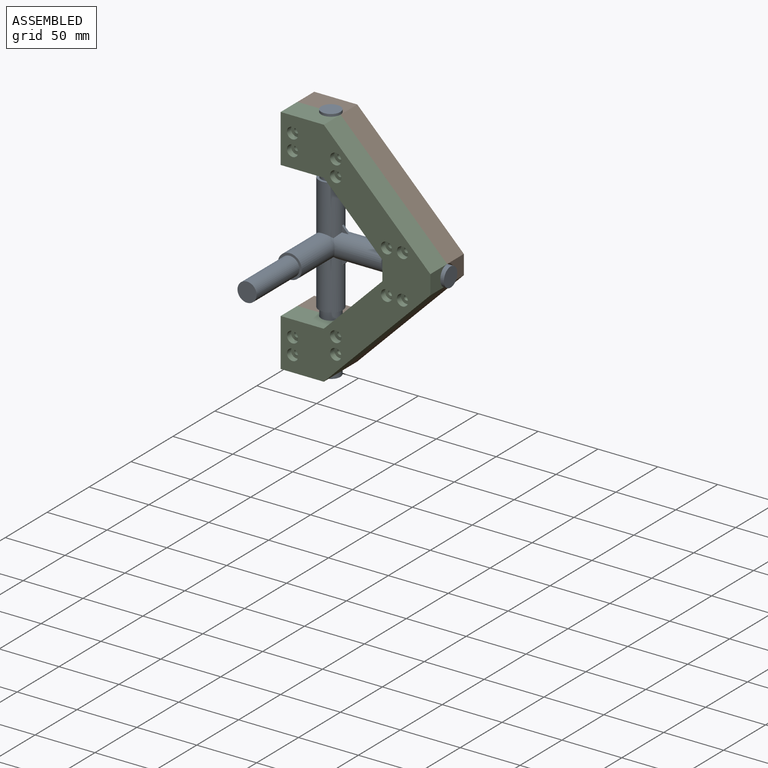
[diagram: assembled view]
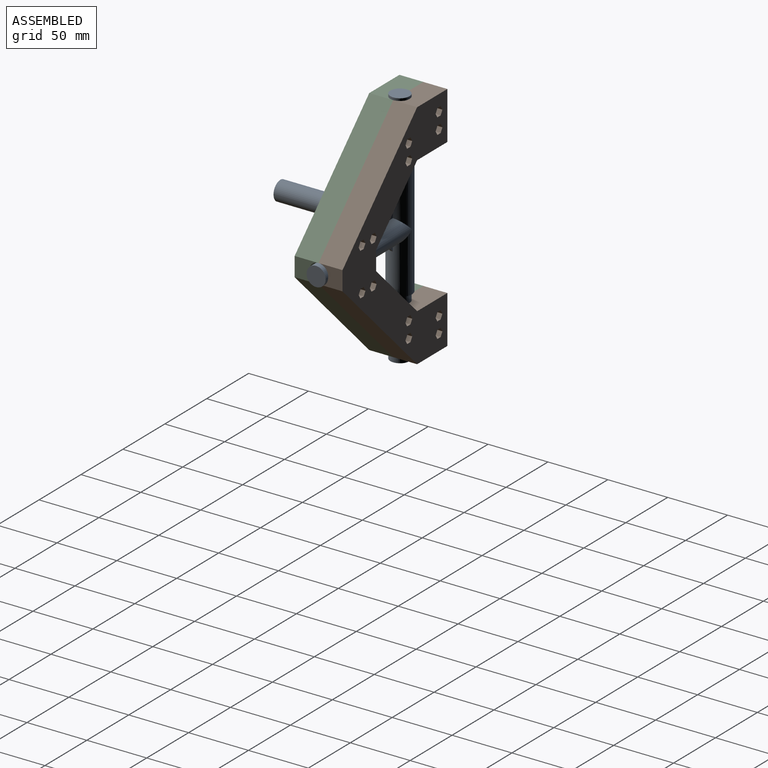
[diagram: assembled view, second angle]
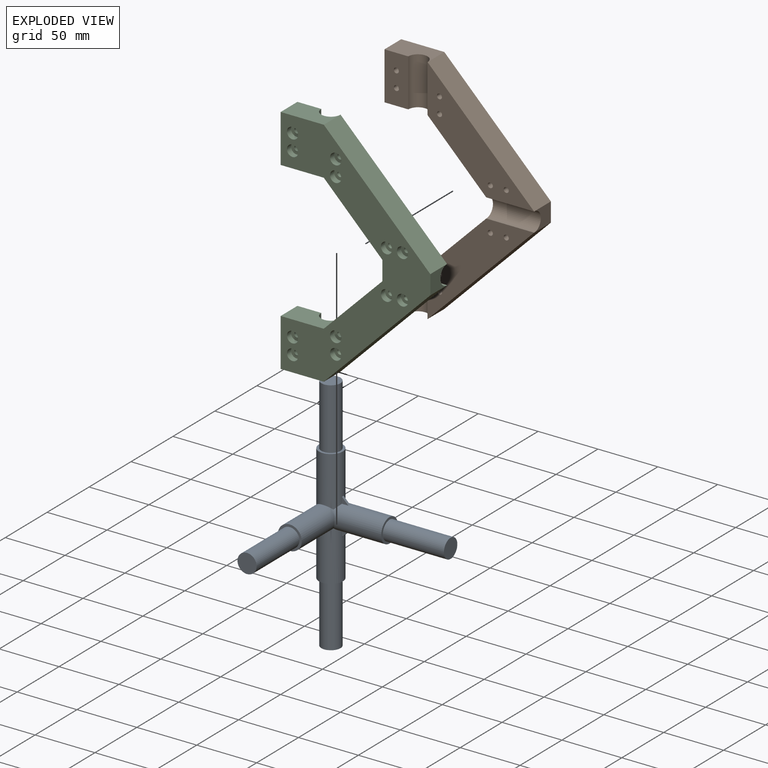
[diagram: exploded view]
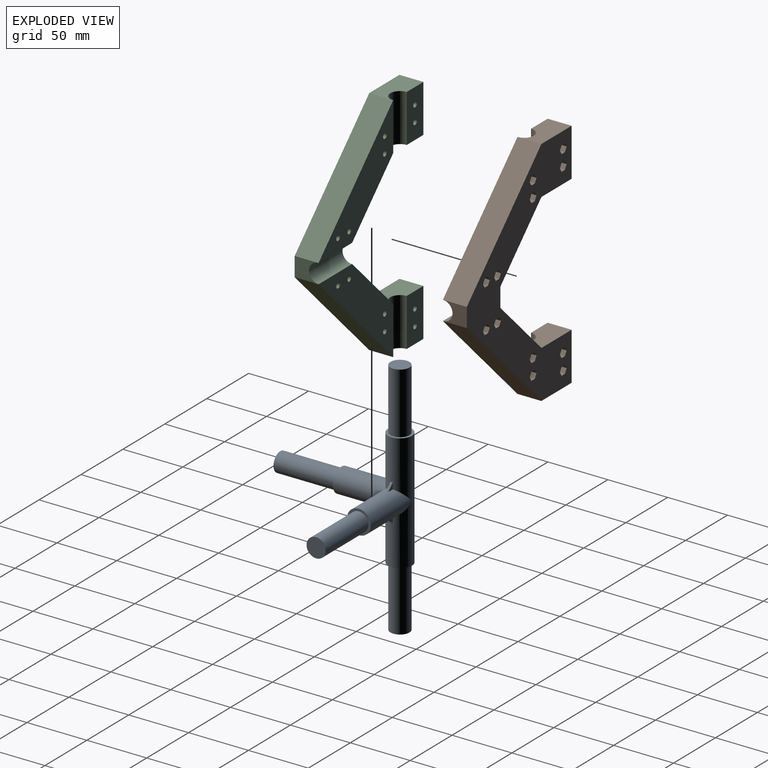
[diagram: exploded view, second angle]
ASSEMBLY  parts=3 mates=3
PART A: 21 faces, bbox 110x110x200 mm
  f0: cylinder r=8mm len=51mm, axis (-1,0,0), area 2563.5mm2, adj f1,f3
  f1: plane 20x20mm, normal (1,0,0), area 113.1mm2, adj f0,f2
  f2: cylinder r=10mm len=49mm, axis (-1,0,0), area 2574.9mm2, adj f1,f7,f11,f12,f13,f14,f15,f16
  f3: plane 16x16mm, normal (1,0,0), area 201.1mm2, adj f0
  f4: plane 16x16mm, normal (0,0,1), area 201.1mm2, adj f5
  f5: cylinder r=8mm len=51mm, axis (0,0,1), area 2563.5mm2, adj f4,f6
  f6: plane 20x20mm, normal (0,0,1), area 113.1mm2, adj f5,f7
  f7: cylinder r=10mm len=98mm, axis (0,0,1), area 5453.7mm2, adj f2,f6,f8,f11,f12,f13,f14,f15
  f8: plane 20x20mm, normal (0,0,-1), area 113.1mm2, adj f7,f9
  f9: cylinder r=8mm len=51mm, axis (0,0,1), area 2563.5mm2, adj f8,f10
  f10: plane 16x16mm, normal (0,0,-1), area 201.1mm2, adj f9
  f11: plane 5.33x5.33mm, normal (0.71,0,0.71), area 14.8mm2, adj f2,f7,f12,f13
  f12: plane 5.3x5.3mm, normal (0,-1,0), area 14mm2, adj f2,f7,f11
  f13: plane 5.3x5.3mm, normal (0,1,0), area 14mm2, adj f2,f7,f11
  f14: plane 5.33x5.33mm, normal (0.71,0,-0.71), area 14.8mm2, adj f2,f7,f15,f16
  f15: plane 5.3x5.3mm, normal (0,-1,0), area 14mm2, adj f2,f7,f14
  f16: plane 5.3x5.3mm, normal (0,1,0), area 14mm2, adj f2,f7,f14
  f17: plane 20x20mm, normal (0,-1,0), area 113.1mm2, adj f18,f20
  f18: cylinder r=8mm len=51mm, axis (0,1,0), area 2563.5mm2, adj f17,f19
  f19: plane 16x16mm, normal (0,-1,0), area 201.1mm2, adj f18
  f20: cylinder r=10mm len=49mm, axis (0,1,0), area 2595.9mm2, adj f2,f7,f17
PART B: 118 faces, bbox 125x20x194 mm
  f0: cylinder r=2.12mm len=15.8mm, axis (0,-1,0), area 211mm2, adj f113,f115
  f1: cylinder r=2.12mm len=15.8mm, axis (0,-1,0), area 211mm2, adj f106,f114
  f2: cylinder r=2.12mm len=15.8mm, axis (0,-1,0), area 211mm2, adj f99,f114
  f3: cylinder r=2.12mm len=15.8mm, axis (0,-1,0), area 211mm2, adj f92,f117
  f4: cylinder r=2.12mm len=15.8mm, axis (0,-1,0), area 211mm2, adj f85,f116
  f5: cylinder r=2.12mm len=15.8mm, axis (0,-1,0), area 211mm2, adj f78,f115
  f6: cylinder r=2.12mm len=15.8mm, axis (0,-1,0), area 211mm2, adj f71,f115
  f7: cylinder r=2.12mm len=15.8mm, axis (0,-1,0), area 211mm2, adj f64,f117
  f8: cylinder r=2.12mm len=15.8mm, axis (0,-1,0), area 211mm2, adj f57,f115
  f9: cylinder r=2.12mm len=15.8mm, axis (0,-1,0), area 211mm2, adj f50,f114
  f10: cylinder r=2.12mm len=15.8mm, axis (0,-1,0), area 211mm2, adj f43,f114
  f11: cylinder r=2.12mm len=15.8mm, axis (0,-1,0), area 211mm2, adj f36,f116
  f12: plane 36x20mm, normal (0,0,1), area 618.2mm2, adj f13,f21,f23,f26,f116
  f13: plane 40x20mm, normal (-1,0,0), area 800mm2, adj f12,f14,f26,f116
  f14: plane 36x20mm, normal (0,0,-1), area 618.2mm2, adj f13,f15,f23,f26,f116
  f15: plane 49x49mm, normal (-0.71,0,-0.71), area 1385.9mm2, adj f14,f24,f26,f27,f115
  f16: plane 49x49mm, normal (-0.71,0,0.71), area 1385.9mm2, adj f17,f25,f26,f27,f114
  f17: plane 36x20mm, normal (0,0,1), area 618.2mm2, adj f16,f18,f22,f26,f117
  f18: plane 40x20mm, normal (-1,0,0), area 800mm2, adj f17,f19,f26,f117
  f19: plane 36x20mm, normal (0,0,-1), area 618.2mm2, adj f18,f20,f22,f26,f117
  f20: plane 89x89mm, normal (0.71,0,-0.71), area 2517.3mm2, adj f19,f25,f26,f28,f114
  f21: plane 89x89mm, normal (0.71,0,0.71), area 2517.3mm2, adj f12,f24,f26,f28,f115
  f22: cylinder r=8.05mm len=40mm, axis (0,0,1), area 1011.6mm2, adj f17,f19,f114,f117
  f23: cylinder r=8.05mm len=40mm, axis (0,0,1), area 1011.6mm2, adj f12,f14,f115,f116
  f24: plane 40x0.9mm, normal (0,0,-1), area 35.8mm2, adj f15,f21,f29,f115
  f25: plane 40x0.9mm, normal (0,0,1), area 35.8mm2, adj f16,f20,f29,f114
  f26: plane 194x125mm, normal (0,1,0), area 8523.5mm2, adj f12,f13,f14,f15,f16,f17,f18,f19
  f27: plane 19.1x16mm, normal (-1,0,0), area 218.3mm2, adj f15,f16,f26,f29
  f28: plane 19.1x16mm, normal (1,0,0), area 218.3mm2, adj f20,f21,f26,f29
  f29: cylinder r=8.05mm len=40mm, axis (1,0,0), area 939.8mm2, adj f24,f25,f27,f28
  f30: plane 4.2x3.53mm, normal (0.87,0,-0.5), area 17.1mm2, adj f26,f31,f35,f36
  f31: plane 4.2x4.07mm, normal (0,0,-1), area 17.1mm2, adj f26,f30,f32,f36
  f32: plane 4.2x3.53mm, normal (-0.87,0,-0.5), area 17.1mm2, adj f26,f31,f33,f36
  f33: plane 4.2x3.53mm, normal (-0.87,0,0.5), area 17.1mm2, adj f26,f32,f34,f36
  f34: plane 4.2x4.07mm, normal (0,0,1), area 17.1mm2, adj f26,f33,f35,f36
  f35: plane 4.2x3.53mm, normal (0.87,0,0.5), area 17.1mm2, adj f26,f30,f34,f36
  f36: plane 8.14x7.05mm, normal (0,1,0), area 28.9mm2, adj f11,f30,f31,f32,f33,f34,f35
  f37: plane 4.2x3.53mm, normal (0.87,0,-0.5), area 17.1mm2, adj f26,f38,f42,f43
  f38: plane 4.2x4.07mm, normal (0,0,-1), area 17.1mm2, adj f26,f37,f39,f43
  f39: plane 4.2x3.53mm, normal (-0.87,0,-0.5), area 17.1mm2, adj f26,f38,f40,f43
  f40: plane 4.2x3.53mm, normal (-0.87,0,0.5), area 17.1mm2, adj f26,f39,f41,f43
  f41: plane 4.2x4.07mm, normal (0,0,1), area 17.1mm2, adj f26,f40,f42,f43
  f42: plane 4.2x3.53mm, normal (0.87,0,0.5), area 17.1mm2, adj f26,f37,f41,f43
  f43: plane 8.14x7.05mm, normal (0,1,0), area 28.9mm2, adj f10,f37,f38,f39,f40,f41,f42
  f44: plane 4.2x3.53mm, normal (-0.87,0,0.5), area 17.1mm2, adj f26,f45,f49,f50
  f45: plane 4.2x4.07mm, normal (0,0,1), area 17.1mm2, adj f26,f44,f46,f50
  f46: plane 4.2x3.53mm, normal (0.87,0,0.5), area 17.1mm2, adj f26,f45,f47,f50
  f47: plane 4.2x3.53mm, normal (0.87,0,-0.5), area 17.1mm2, adj f26,f46,f48,f50
  f48: plane 4.2x4.07mm, normal (0,0,-1), area 17.1mm2, adj f26,f47,f49,f50
  f49: plane 4.2x3.53mm, normal (-0.87,0,-0.5), area 17.1mm2, adj f26,f44,f48,f50
  f50: plane 8.14x7.05mm, normal (0,1,0), area 28.9mm2, adj f9,f44,f45,f46,f47,f48,f49
  f51: plane 4.2x3.53mm, normal (-0.87,0,0.5), area 17.1mm2, adj f26,f52,f56,f57
  f52: plane 4.2x4.07mm, normal (0,0,1), area 17.1mm2, adj f26,f51,f53,f57
  f53: plane 4.2x3.53mm, normal (0.87,0,0.5), area 17.1mm2, adj f26,f52,f54,f57
  f54: plane 4.2x3.53mm, normal (0.87,0,-0.5), area 17.1mm2, adj f26,f53,f55,f57
  f55: plane 4.2x4.07mm, normal (0,0,-1), area 17.1mm2, adj f26,f54,f56,f57
  f56: plane 4.2x3.53mm, normal (-0.87,0,-0.5), area 17.1mm2, adj f26,f51,f55,f57
  f57: plane 8.14x7.05mm, normal (0,1,0), area 28.9mm2, adj f8,f51,f52,f53,f54,f55,f56
  f58: plane 4.2x3.53mm, normal (0.87,0,-0.5), area 17.1mm2, adj f26,f59,f63,f64
  f59: plane 4.2x4.07mm, normal (0,0,-1), area 17.1mm2, adj f26,f58,f60,f64
  f60: plane 4.2x3.53mm, normal (-0.87,0,-0.5), area 17.1mm2, adj f26,f59,f61,f64
  f61: plane 4.2x3.53mm, normal (-0.87,0,0.5), area 17.1mm2, adj f26,f60,f62,f64
  f62: plane 4.2x4.07mm, normal (0,0,1), area 17.1mm2, adj f26,f61,f63,f64
  f63: plane 4.2x3.53mm, normal (0.87,0,0.5), area 17.1mm2, adj f26,f58,f62,f64
  f64: plane 8.14x7.05mm, normal (0,1,0), area 28.9mm2, adj f7,f58,f59,f60,f61,f62,f63
  f65: plane 4.2x3.53mm, normal (-0.87,0,0.5), area 17.1mm2, adj f26,f66,f70,f71
  f66: plane 4.2x4.07mm, normal (0,0,1), area 17.1mm2, adj f26,f65,f67,f71
  f67: plane 4.2x3.53mm, normal (0.87,0,0.5), area 17.1mm2, adj f26,f66,f68,f71
  f68: plane 4.2x3.53mm, normal (0.87,0,-0.5), area 17.1mm2, adj f26,f67,f69,f71
  f69: plane 4.2x4.07mm, normal (0,0,-1), area 17.1mm2, adj f26,f68,f70,f71
  f70: plane 4.2x3.53mm, normal (-0.87,0,-0.5), area 17.1mm2, adj f26,f65,f69,f71
  f71: plane 8.14x7.05mm, normal (0,1,0), area 28.9mm2, adj f6,f65,f66,f67,f68,f69,f70
  f72: plane 4.2x3.59mm, normal (0.88,0,0.47), area 17.1mm2, adj f26,f73,f77,f78
  f73: plane 4.2x3.45mm, normal (0.85,0,-0.53), area 17.1mm2, adj f26,f72,f74,f78
  f74: plane 4.2x4.07mm, normal (-0.03,0,-1), area 17.1mm2, adj f26,f73,f75,f78
  f75: plane 4.2x3.59mm, normal (-0.88,0,-0.47), area 17.1mm2, adj f26,f74,f76,f78
  f76: plane 4.2x3.45mm, normal (-0.85,0,0.53), area 17.1mm2, adj f26,f75,f77,f78
  f77: plane 4.2x4.07mm, normal (0.03,0,1), area 17.1mm2, adj f26,f72,f76,f78
  f78: plane 8.14x7.19mm, normal (0,1,0), area 28.9mm2, adj f5,f72,f73,f74,f75,f76,f77
  f79: plane 4.2x3.53mm, normal (-0.87,0,0.5), area 17.1mm2, adj f26,f80,f84,f85
  f80: plane 4.2x4.07mm, normal (0,0,1), area 17.1mm2, adj f26,f79,f81,f85
  f81: plane 4.2x3.53mm, normal (0.87,0,0.5), area 17.1mm2, adj f26,f80,f82,f85
  f82: plane 4.2x3.53mm, normal (0.87,0,-0.5), area 17.1mm2, adj f26,f81,f83,f85
  f83: plane 4.2x4.07mm, normal (0,0,-1), area 17.1mm2, adj f26,f82,f84,f85
  f84: plane 4.2x3.53mm, normal (-0.87,0,-0.5), area 17.1mm2, adj f26,f79,f83,f85
  f85: plane 8.14x7.05mm, normal (0,1,0), area 28.9mm2, adj f4,f79,f80,f81,f82,f83,f84
  f86: plane 4.2x3.53mm, normal (0.87,0,-0.5), area 17.1mm2, adj f26,f87,f91,f92
  f87: plane 4.2x4.07mm, normal (0,0,-1), area 17.1mm2, adj f26,f86,f88,f92
  f88: plane 4.2x3.53mm, normal (-0.87,0,-0.5), area 17.1mm2, adj f26,f87,f89,f92
  f89: plane 4.2x3.53mm, normal (-0.87,0,0.5), area 17.1mm2, adj f26,f88,f90,f92
  f90: plane 4.2x4.07mm, normal (0,0,1), area 17.1mm2, adj f26,f89,f91,f92
  f91: plane 4.2x3.53mm, normal (0.87,0,0.5), area 17.1mm2, adj f26,f86,f90,f92
  f92: plane 8.14x7.05mm, normal (0,1,0), area 28.9mm2, adj f3,f86,f87,f88,f89,f90,f91
  f93: plane 4.2x3.53mm, normal (-0.87,0,0.5), area 17.1mm2, adj f26,f94,f98,f99
  f94: plane 4.2x4.07mm, normal (0,0,1), area 17.1mm2, adj f26,f93,f95,f99
  f95: plane 4.2x3.53mm, normal (0.87,0,0.5), area 17.1mm2, adj f26,f94,f96,f99
  f96: plane 4.2x3.53mm, normal (0.87,0,-0.5), area 17.1mm2, adj f26,f95,f97,f99
  f97: plane 4.2x4.07mm, normal (0,0,-1), area 17.1mm2, adj f26,f96,f98,f99
  f98: plane 4.2x3.53mm, normal (-0.87,0,-0.5), area 17.1mm2, adj f26,f93,f97,f99
  f99: plane 8.14x7.05mm, normal (0,1,0), area 28.9mm2, adj f2,f93,f94,f95,f96,f97,f98
  f100: plane 4.2x3.53mm, normal (0.87,0,-0.5), area 17.1mm2, adj f26,f101,f105,f106
  f101: plane 4.2x4.07mm, normal (0,0,-1), area 17.1mm2, adj f26,f100,f102,f106
  f102: plane 4.2x3.53mm, normal (-0.87,0,-0.5), area 17.1mm2, adj f26,f101,f103,f106
  f103: plane 4.2x3.53mm, normal (-0.87,0,0.5), area 17.1mm2, adj f26,f102,f104,f106
  f104: plane 4.2x4.07mm, normal (0,0,1), area 17.1mm2, adj f26,f103,f105,f106
  f105: plane 4.2x3.53mm, normal (0.87,0,0.5), area 17.1mm2, adj f26,f100,f104,f106
  f106: plane 8.14x7.05mm, normal (0,1,0), area 28.9mm2, adj f1,f100,f101,f102,f103,f104,f105
  f107: plane 4.2x3.53mm, normal (-0.87,0,0.5), area 17.1mm2, adj f26,f108,f112,f113
  f108: plane 4.2x4.07mm, normal (0,0,1), area 17.1mm2, adj f26,f107,f109,f113
  f109: plane 4.2x3.53mm, normal (0.87,0,0.5), area 17.1mm2, adj f26,f108,f110,f113
  f110: plane 4.2x3.53mm, normal (0.87,0,-0.5), area 17.1mm2, adj f26,f109,f111,f113
  f111: plane 4.2x4.07mm, normal (0,0,-1), area 17.1mm2, adj f26,f110,f112,f113
  f112: plane 4.2x3.53mm, normal (-0.87,0,-0.5), area 17.1mm2, adj f26,f107,f111,f113
  f113: plane 8.14x7.05mm, normal (0,1,0), area 28.9mm2, adj f0,f107,f108,f109,f110,f111,f112
  f114: plane 89x89mm, normal (0,-1,0), area 2703.3mm2, adj f1,f2,f9,f10,f16,f20,f22,f25
  f115: plane 89x89mm, normal (0,-1,0), area 2703.3mm2, adj f0,f5,f6,f8,f15,f21,f23,f24
  f116: plane 40x19.9mm, normal (0,-1,0), area 767.6mm2, adj f4,f11,f12,f13,f14,f23
  f117: plane 40x19.9mm, normal (0,-1,0), area 767.6mm2, adj f3,f7,f17,f18,f19,f22
PART C: 58 faces, bbox 125x20x194 mm
  f0: cylinder r=2.12mm len=15mm, axis (0,-1,0), area 200.3mm2, adj f30,f55
  f1: cylinder r=2.12mm len=15mm, axis (0,-1,0), area 200.3mm2, adj f33,f49
  f2: cylinder r=2.12mm len=15mm, axis (0,-1,0), area 200.3mm2, adj f31,f46
  f3: cylinder r=2.12mm len=15mm, axis (0,-1,0), area 200.3mm2, adj f31,f44
  f4: cylinder r=2.12mm len=15mm, axis (0,-1,0), area 200.3mm2, adj f32,f42
  f5: cylinder r=2.12mm len=15mm, axis (0,-1,0), area 200.3mm2, adj f30,f39
  f6: cylinder r=2.12mm len=15mm, axis (0,-1,0), area 200.3mm2, adj f31,f34
  f7: cylinder r=2.12mm len=15mm, axis (0,-1,0), area 200.3mm2, adj f30,f37
  f8: cylinder r=2.12mm len=15mm, axis (0,-1,0), area 200.3mm2, adj f33,f41
  f9: cylinder r=2.12mm len=15mm, axis (0,-1,0), area 200.3mm2, adj f31,f50
  f10: cylinder r=2.12mm len=15mm, axis (0,-1,0), area 200.3mm2, adj f30,f53
  f11: cylinder r=2.12mm len=15mm, axis (0,-1,0), area 200.3mm2, adj f32,f56
  f12: plane 19.1x16mm, normal (-1,0,0), area 218.3mm2, adj f14,f17,f22,f29
  f13: plane 19.1x16mm, normal (1,0,0), area 218.3mm2, adj f14,f16,f22,f24
  f14: plane 194x125mm, normal (0,-1,0), area 8207.2mm2, adj f12,f13,f16,f17,f19,f20,f21,f24
  f15: plane 40x0.9mm, normal (0,0,-1), area 35.8mm2, adj f16,f17,f22,f31
  f16: plane 89x89mm, normal (0.71,0,0.71), area 2517.3mm2, adj f13,f14,f15,f21,f31
  f17: plane 49x49mm, normal (-0.71,0,-0.71), area 1385.9mm2, adj f12,f14,f15,f19,f31
  f18: cylinder r=8.05mm len=40mm, axis (0,0,1), area 1011.6mm2, adj f19,f21,f31,f32
  f19: plane 36x20mm, normal (0,0,-1), area 618.2mm2, adj f14,f17,f18,f20,f32
  f20: plane 40x20mm, normal (-1,0,0), area 800mm2, adj f14,f19,f21,f32
  f21: plane 36x20mm, normal (0,0,1), area 618.2mm2, adj f14,f16,f18,f20,f32
  f22: cylinder r=8.05mm len=40mm, axis (1,0,0), area 939.8mm2, adj f12,f13,f15,f23
  f23: plane 40x0.9mm, normal (0,0,1), area 35.8mm2, adj f22,f24,f29,f30
  f24: plane 89x89mm, normal (0.71,0,-0.71), area 2517.3mm2, adj f13,f14,f23,f26,f30
  f25: cylinder r=8.05mm len=40mm, axis (0,0,1), area 1011.6mm2, adj f26,f28,f30,f33
  f26: plane 36x20mm, normal (0,0,-1), area 618.2mm2, adj f14,f24,f25,f27,f33
  f27: plane 40x20mm, normal (-1,0,0), area 800mm2, adj f14,f26,f28,f33
  f28: plane 36x20mm, normal (0,0,1), area 618.2mm2, adj f14,f25,f27,f29,f33
  f29: plane 49x49mm, normal (-0.71,0,0.71), area 1385.9mm2, adj f12,f14,f23,f28,f30
  f30: plane 89x89mm, normal (0,1,0), area 2703.3mm2, adj f0,f5,f7,f10,f23,f24,f25,f29
  f31: plane 89x89mm, normal (0,1,0), area 2703.3mm2, adj f2,f3,f6,f9,f15,f16,f17,f18
  f32: plane 40x19.9mm, normal (0,1,0), area 767.6mm2, adj f4,f11,f18,f19,f20,f21
  f33: plane 40x19.9mm, normal (0,1,0), area 767.6mm2, adj f1,f8,f25,f26,f27,f28
  f34: plane 9.4x9.4mm, normal (0,-1,0), area 55.2mm2, adj f6,f35
  f35: cylinder r=4.7mm len=9.4mm, axis (0,-1,0), area 147.7mm2, adj f14,f34
  f36: cylinder r=4.7mm len=9.4mm, axis (0,-1,0), area 147.7mm2, adj f14,f37
  f37: plane 9.4x9.4mm, normal (0,-1,0), area 55.2mm2, adj f7,f36
  f38: cylinder r=4.7mm len=9.4mm, axis (0,-1,0), area 147.7mm2, adj f14,f39
  f39: plane 9.4x9.4mm, normal (0,-1,0), area 55.2mm2, adj f5,f38
  f40: cylinder r=4.7mm len=9.4mm, axis (0,-1,0), area 147.7mm2, adj f14,f41
  f41: plane 9.4x9.4mm, normal (0,-1,0), area 55.2mm2, adj f8,f40
  f42: plane 9.4x9.4mm, normal (0,-1,0), area 55.2mm2, adj f4,f43
  f43: cylinder r=4.7mm len=9.4mm, axis (0,-1,0), area 147.7mm2, adj f14,f42
  f44: plane 9.4x9.4mm, normal (0,-1,0), area 55.2mm2, adj f3,f45
  f45: cylinder r=4.7mm len=9.4mm, axis (0,-1,0), area 147.7mm2, adj f14,f44
  f46: plane 9.4x9.4mm, normal (0,-1,0), area 55.2mm2, adj f2,f47
  f47: cylinder r=4.7mm len=9.4mm, axis (0,-1,0), area 147.7mm2, adj f14,f46
  f48: cylinder r=4.7mm len=9.4mm, axis (0,-1,0), area 147.7mm2, adj f14,f49
  f49: plane 9.4x9.4mm, normal (0,-1,0), area 55.2mm2, adj f1,f48
  f50: plane 9.4x9.4mm, normal (0,-1,0), area 55.2mm2, adj f9,f51
  f51: cylinder r=4.7mm len=9.4mm, axis (0,-1,0), area 147.7mm2, adj f14,f50
  f52: cylinder r=4.7mm len=9.4mm, axis (0,-1,0), area 147.7mm2, adj f14,f53
  f53: plane 9.4x9.4mm, normal (0,-1,0), area 55.2mm2, adj f10,f52
  f54: cylinder r=4.7mm len=9.4mm, axis (0,-1,0), area 147.7mm2, adj f14,f55
  f55: plane 9.4x9.4mm, normal (0,-1,0), area 55.2mm2, adj f0,f54
  f56: plane 9.4x9.4mm, normal (0,-1,0), area 55.2mm2, adj f11,f57
  f57: cylinder r=4.7mm len=9.4mm, axis (0,-1,0), area 147.7mm2, adj f14,f56
PLACE A t=(-62.43,-22.2,-18.21)mm fixed
PLACE B t=(-55.84,-22.2,-40.76)mm
PLACE C t=(-55.84,-22.2,-40.76)mm
MATE pin_slot C.f18 <-> A.f5  axis (0,0,1) through (-62.43,-22.2,79.79)mm
MATE fastened C.f11 <-> B.f11  axis (0,1,0) through (-80.43,-22.2,66.46)mm
MATE planar C.f11 <-> B.f11  axis (0,1,0) through (-80.43,-22.2,66.46)mm
